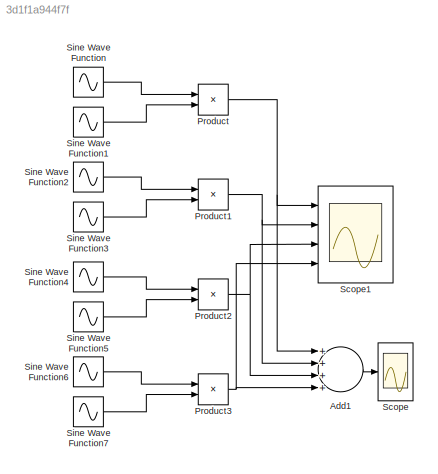
MODEL slx_3d1f1a944f7f
KIND model
CONFIG AbsTol = auto
CONFIG EnableMultiTasking = off
CONFIG FixedStep = auto
CONFIG MaxStep = auto
CONFIG MinStep = auto
CONFIG RelTol = 1e-3
CONFIG SampleTimeConstraint = Unconstrained
CONFIG Solver = VariableStepAuto
CONFIG SolverName = VariableStepAuto
CONFIG StartTime = 0.0
CONFIG StopTime = 10.0
BLOCK [Sum] Add1
  InputSameDT = off
  Inputs = ++++
  OutDataTypeStr = Inherit: Inherit via internal rule
  Ports = [4, 1]
  SaturateOnIntegerOverflow = off
BLOCK [Product] Product
  InputSameDT = off
  OutDataTypeStr = Inherit: Inherit via internal rule
  Ports = [2, 1]
  RndMeth = Floor
  SaturateOnIntegerOverflow = off
BLOCK [Product] Product1
  InputSameDT = off
  OutDataTypeStr = Inherit: Inherit via internal rule
  Ports = [2, 1]
  RndMeth = Floor
  SaturateOnIntegerOverflow = off
BLOCK [Product] Product2
  InputSameDT = off
  OutDataTypeStr = Inherit: Inherit via internal rule
  Ports = [2, 1]
  RndMeth = Floor
  SaturateOnIntegerOverflow = off
BLOCK [Product] Product3
  InputSameDT = off
  OutDataTypeStr = Inherit: Inherit via internal rule
  Ports = [2, 1]
  RndMeth = Floor
  SaturateOnIntegerOverflow = off
BLOCK [Scope] Scope
  Floating = off
  NumInputPorts = 1
  Ports = [1]
  ScopeSpecificationString = Simulink.scopes.TimeScopeBlockCfg('CurrentConfiguration', extmgr.ConfigurationSet(extmgr.Configuration('Core','General UI',true),extmgr.Configuration('Core','Source UI',true),extmgr.Configuration('Sources','WiredSimulink',true,'DataLoggingVariableName','ScopeData2'),extmgr.Configuration('Visuals','Time Domain',true,'SerializedDisplays',{struct('MinYLimReal','-1.67333','MaxYLimReal','1.50063','YLab...<+1382ch>
BLOCK [Scope] Scope1
  Floating = off
  NumInputPorts = 4
  Ports = [4]
  ScopeSpecificationString = Simulink.scopes.TimeScopeBlockCfg('CurrentConfiguration', extmgr.ConfigurationSet(extmgr.Configuration('Core','General UI',true),extmgr.Configuration('Core','Source UI',true),extmgr.Configuration('Sources','WiredSimulink',true,'DataLoggingVariableName','ScopeData1'),extmgr.Configuration('Visuals','Time Domain',true,'SerializedDisplays',{struct('MinYLimReal','-0.61751','MaxYLimReal','0.57888','YLab...<+3551ch>
BLOCK [Sin] Sine Wave Function
  Amplitude = 0.5
  Ports = [0, 1]
  SampleTime = 0
BLOCK [Sin] Sine Wave Function1
  Frequency = 3
  Ports = [0, 1]
  SampleTime = 0
BLOCK [Sin] Sine Wave Function2
  Amplitude = 0.5
  Frequency = 2
  Ports = [0, 1]
  SampleTime = 0
BLOCK [Sin] Sine Wave Function3
  Frequency = 4
  Ports = [0, 1]
  SampleTime = 0
BLOCK [Sin] Sine Wave Function4
  Amplitude = 0.5
  Frequency = 3
  Ports = [0, 1]
  SampleTime = 0
BLOCK [Sin] Sine Wave Function5
  Frequency = 5
  Ports = [0, 1]
  SampleTime = 0
  Samples = 5
BLOCK [Sin] Sine Wave Function6
  Amplitude = 0.5
  Frequency = 6
  Ports = [0, 1]
  SampleTime = 0
  Samples = 6
BLOCK [Sin] Sine Wave Function7
  Frequency = 7
  Ports = [0, 1]
  SampleTime = 0
LINE Add1:1 -> Scope:1
NET Product1:1 -> Add1:2, Scope1:2
NET Product2:1 -> Add1:3, Scope1:3
NET Product3:1 -> Add1:4, Scope1:4
NET Product:1 -> Add1:1, Scope1:1
LINE Sine Wave Function1:1 -> Product:2
LINE Sine Wave Function2:1 -> Product1:1
LINE Sine Wave Function3:1 -> Product1:2
LINE Sine Wave Function4:1 -> Product2:1
LINE Sine Wave Function5:1 -> Product2:2
LINE Sine Wave Function6:1 -> Product3:1
LINE Sine Wave Function7:1 -> Product3:2
LINE Sine Wave Function:1 -> Product:1
note: NET lines group one-source signal fan-out (src -> all destinations, sorted); 1:1 wires keep LINE
